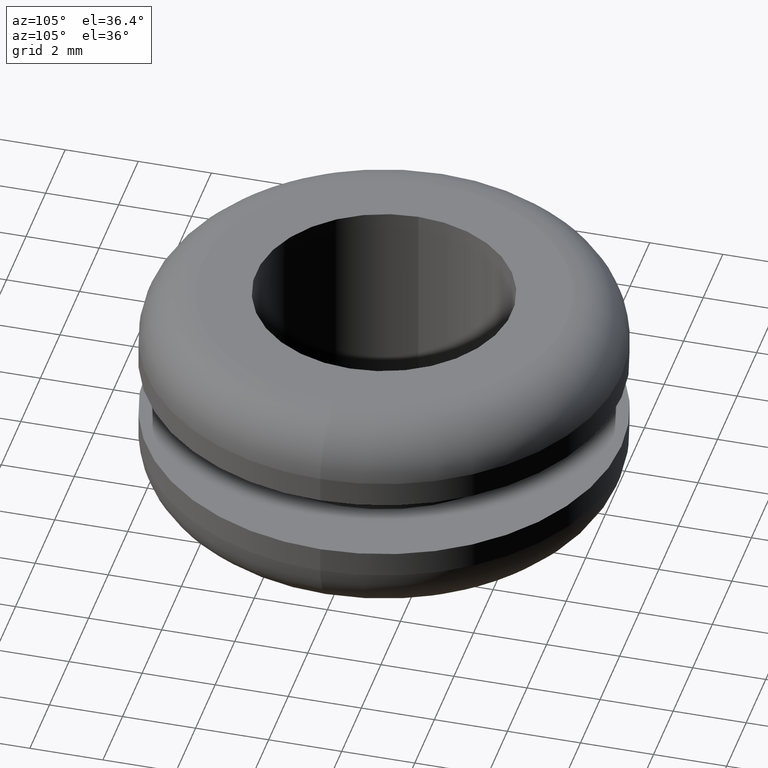
[diagram: clean part render]
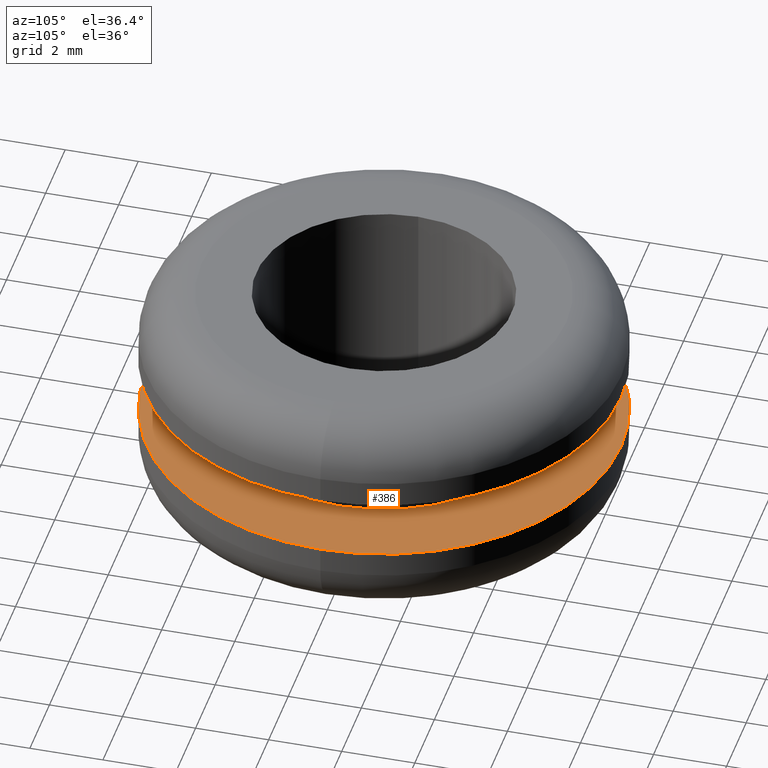
[diagram: same view with one face highlighted and labeled with its STEP entity id]
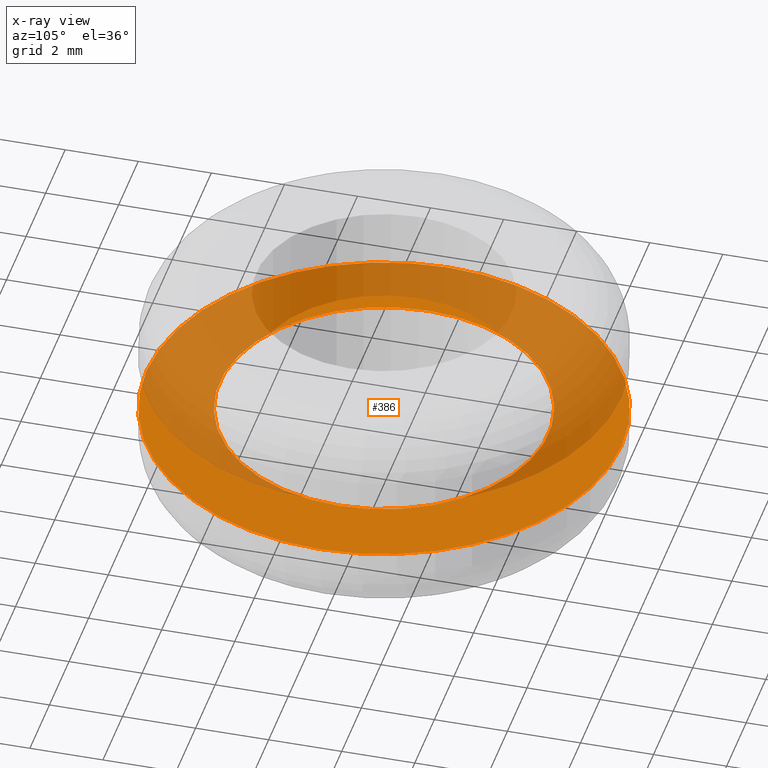
[diagram: x-ray of the same camera — body ghosted, the highlighted face saturated]
A machine part, auxiliary view. The second image highlights one B-rep face of the part: STEP entity #386.
The next image is the same camera in x-ray: the body ghosted, the highlighted face saturated — about 57% of this face is hidden behind the body in this view.
In plain terms, the highlighted planar face has unit normal (0, 0, 1).
Its self-contained STEP definition (entity closure, byte-faithful):
#36 = CIRCLE ( 'NONE', #46, 4.500000000019890800 ) ;
#41 = AXIS2_PLACEMENT_3D ( 'NONE', #443, #259, #382 ) ;
#46 = AXIS2_PLACEMENT_3D ( 'NONE', #284, #325, #194 ) ;
#51 = CARTESIAN_POINT ( 'NONE',  ( 108.7104937855071000, 5.510910596187446600E-016, 140.1985603604344100 ) ) ;
#60 = ORIENTED_EDGE ( 'NONE', *, *, #200, .F. ) ;
#73 = FACE_BOUND ( 'NONE', #249, .T. ) ;
#97 = DIRECTION ( 'NONE',  ( 0.0000000000000000000, 0.0000000000000000000, -1.000000000000000000 ) ) ;
#155 = DIRECTION ( 'NONE',  ( -1.000000000000000000, 0.0000000000000000000, 0.0000000000000000000 ) ) ;
#157 = CIRCLE ( 'NONE', #340, 4.500000000019890800 ) ;
#158 = ORIENTED_EDGE ( 'NONE', *, *, #255, .T. ) ;
#159 = EDGE_CURVE ( 'NONE', #355, #188, #157, .T. ) ;
#165 = CIRCLE ( 'NONE', #41, 6.500000000019892500 ) ;
#167 = VERTEX_POINT ( 'NONE', #170 ) ;
#170 = CARTESIAN_POINT ( 'NONE',  ( 97.71049378546730700, 0.0000000000000000000, 140.1985603604344100 ) ) ;
#188 = VERTEX_POINT ( 'NONE', #51 ) ;
#194 = DIRECTION ( 'NONE',  ( -1.000000000000000000, 0.0000000000000000000, 0.0000000000000000000 ) ) ;
#200 = EDGE_CURVE ( 'NONE', #216, #167, #422, .T. ) ;
#216 = VERTEX_POINT ( 'NONE', #298 ) ;
#229 = DIRECTION ( 'NONE',  ( 0.0000000000000000000, 0.0000000000000000000, 1.000000000000000000 ) ) ;
#233 = CARTESIAN_POINT ( 'NONE',  ( 99.71049378546730700, 0.0000000000000000000, 140.1985603604344100 ) ) ;
#236 = CARTESIAN_POINT ( 'NONE',  ( 110.7104937855070000, 0.0000000000000000000, 140.1985603604344100 ) ) ;
#245 = DIRECTION ( 'NONE',  ( -1.000000000000000000, 0.0000000000000000000, 0.0000000000000000000 ) ) ;
#249 = EDGE_LOOP ( 'NONE', ( #445, #158 ) ) ;
#255 = EDGE_CURVE ( 'NONE', #188, #355, #36, .T. ) ;
#259 = DIRECTION ( 'NONE',  ( 0.0000000000000000000, 0.0000000000000000000, -1.000000000000000000 ) ) ;
#264 = EDGE_CURVE ( 'NONE', #167, #216, #165, .T. ) ;
#265 = DIRECTION ( 'NONE',  ( 1.000000000000000000, 0.0000000000000000000, 0.0000000000000000000 ) ) ;
#273 = PLANE ( 'NONE',  #321 ) ;
#284 = CARTESIAN_POINT ( 'NONE',  ( 104.2104937854872000, 0.0000000000000000000, 140.1985603604344100 ) ) ;
#289 = CARTESIAN_POINT ( 'NONE',  ( 104.2104937854872000, 0.0000000000000000000, 140.1985603604344100 ) ) ;
#298 = CARTESIAN_POINT ( 'NONE',  ( 110.7104937855071000, 7.960204194482149600E-016, 140.1985603604344100 ) ) ;
#321 = AXIS2_PLACEMENT_3D ( 'NONE', #236, #229, #265 ) ;
#325 = DIRECTION ( 'NONE',  ( 0.0000000000000000000, 0.0000000000000000000, -1.000000000000000000 ) ) ;
#335 = FACE_OUTER_BOUND ( 'NONE', #420, .T. ) ;
#340 = AXIS2_PLACEMENT_3D ( 'NONE', #461, #356, #245 ) ;
#355 = VERTEX_POINT ( 'NONE', #233 ) ;
#356 = DIRECTION ( 'NONE',  ( 0.0000000000000000000, 0.0000000000000000000, -1.000000000000000000 ) ) ;
#377 = ORIENTED_EDGE ( 'NONE', *, *, #264, .F. ) ;
#382 = DIRECTION ( 'NONE',  ( -1.000000000000000000, 0.0000000000000000000, 0.0000000000000000000 ) ) ;
#386 = ADVANCED_FACE ( 'NONE', ( #73, #335 ), #273, .T. ) ;
#420 = EDGE_LOOP ( 'NONE', ( #377, #60 ) ) ;
#422 = CIRCLE ( 'NONE', #456, 6.500000000019892500 ) ;
#443 = CARTESIAN_POINT ( 'NONE',  ( 104.2104937854872000, 0.0000000000000000000, 140.1985603604344100 ) ) ;
#445 = ORIENTED_EDGE ( 'NONE', *, *, #159, .T. ) ;
#456 = AXIS2_PLACEMENT_3D ( 'NONE', #289, #97, #155 ) ;
#461 = CARTESIAN_POINT ( 'NONE',  ( 104.2104937854872000, 0.0000000000000000000, 140.1985603604344100 ) ) ;